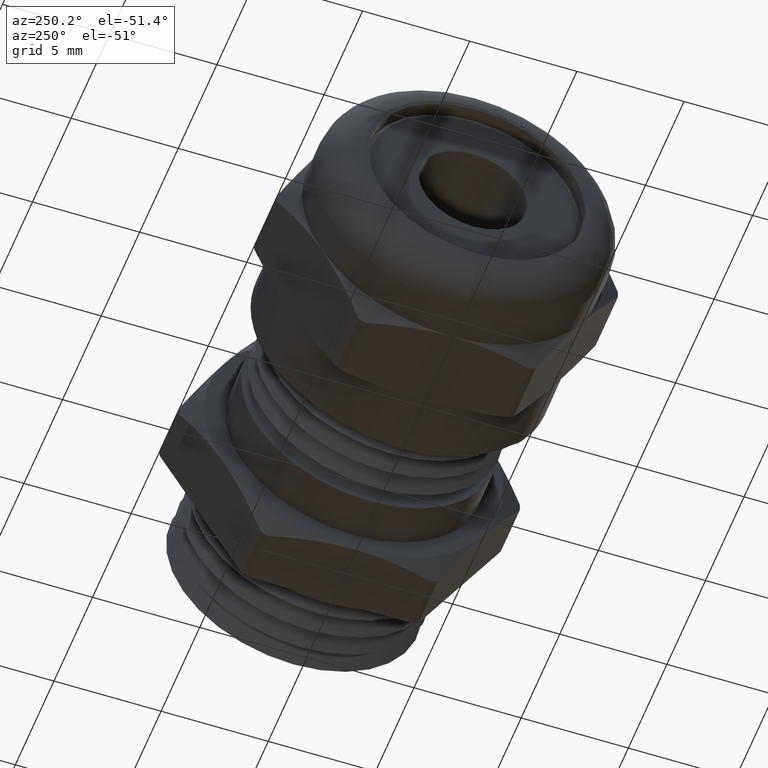
[diagram: clean part render]
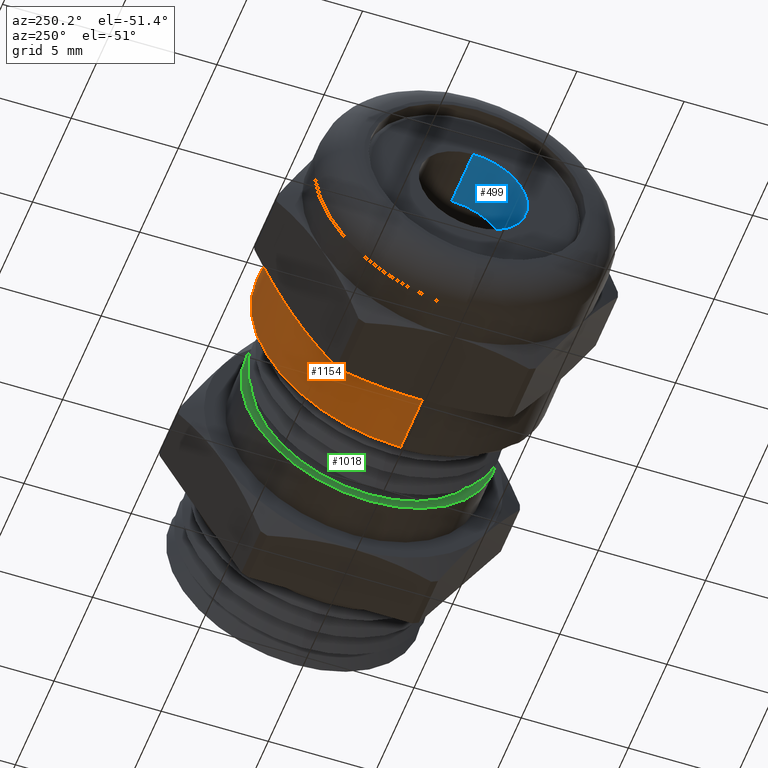
[diagram: same view with three faces highlighted in distinct colors, each labeled with its STEP entity id]
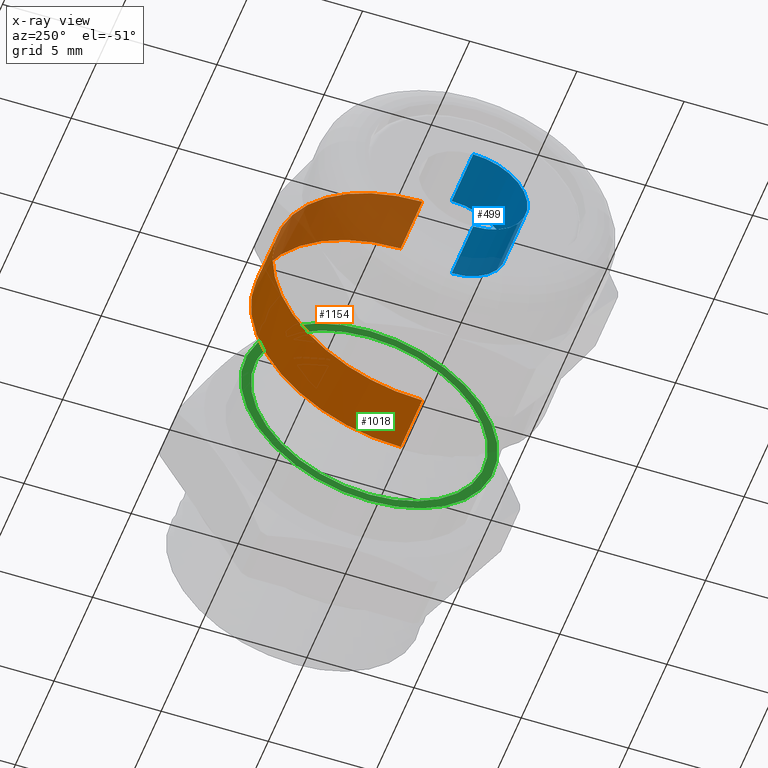
[diagram: x-ray of the same camera — body ghosted, the three highlighted faces saturated]
A machine part, auxiliary view with three faces highlighted in distinct colors.
The next image is the same camera in x-ray (body ghosted, the three faces saturated) — at least one of them is partly hidden behind the body in this view.
Their STEP definitions:

[orange] entity #1154 — the highlighted cylindrical surface (partial cylindrical patch) has radius 6.985 mm, axis along (-1, 0, 0).
#557 = VERTEX_POINT ( 'NONE', #2309 ) ;
#559 = EDGE_CURVE ( 'NONE', #560, #557, #2308, .T. ) ;
#560 = VERTEX_POINT ( 'NONE', #2303 ) ;
#1125 = EDGE_CURVE ( 'NONE', #560, #1190, #3236, .T. ) ;
#1135 = EDGE_CURVE ( 'NONE', #557, #1136, #3267, .T. ) ;
#1136 = VERTEX_POINT ( 'NONE', #3263 ) ;
#1137 = ORIENTED_EDGE ( 'NONE', *, *, #1138, .F. ) ;
#1138 = EDGE_CURVE ( 'NONE', #1139, #1136, #3261, .T. ) ;
#1139 = VERTEX_POINT ( 'NONE', #3262 ) ;
#1154 = ADVANCED_FACE ( 'NONE', ( #3300 ), #3299, .T. ) ;
#1155 = EDGE_LOOP ( 'NONE', ( #1156, #1157, #1137, #1185, #1188, #1207 ) ) ;
#1156 = ORIENTED_EDGE ( 'NONE', *, *, #559, .T. ) ;
#1157 = ORIENTED_EDGE ( 'NONE', *, *, #1135, .T. ) ;
#1185 = ORIENTED_EDGE ( 'NONE', *, *, #1186, .F. ) ;
#1186 = EDGE_CURVE ( 'NONE', #1187, #1139, #3367, .T. ) ;
#1187 = VERTEX_POINT ( 'NONE', #3368 ) ;
#1188 = ORIENTED_EDGE ( 'NONE', *, *, #1189, .F. ) ;
#1189 = EDGE_CURVE ( 'NONE', #1190, #1187, #3362, .T. ) ;
#1190 = VERTEX_POINT ( 'NONE', #3357 ) ;
#1207 = ORIENTED_EDGE ( 'NONE', *, *, #1125, .F. ) ;
#2303 = CARTESIAN_POINT ( 'NONE',  ( -0.08499999999999977000, 0.0000000000000000000, 0.2750000000000000200 ) ) ;
#2304 = DIRECTION ( 'NONE',  ( 0.0000000000000000000, 0.0000000000000000000, 1.000000000000000000 ) ) ;
#2305 = DIRECTION ( 'NONE',  ( -1.000000000000000000, 0.0000000000000000000, 0.0000000000000000000 ) ) ;
#2306 = CARTESIAN_POINT ( 'NONE',  ( -0.08499999999999977000, 0.0000000000000000000, 0.0000000000000000000 ) ) ;
#2307 = AXIS2_PLACEMENT_3D ( 'NONE', #2306, #2305, #2304 ) ;
#2308 = CIRCLE ( 'NONE', #2307, 0.2750000000000000200 ) ;
#2309 = CARTESIAN_POINT ( 'NONE',  ( -0.08499999999999977000, 3.367778697655221900E-017, -0.2750000000000000200 ) ) ;
#3229 = DIRECTION ( 'NONE',  ( -1.000000000000000000, 0.0000000000000000000, 0.0000000000000000000 ) ) ;
#3230 = VECTOR ( 'NONE', #3229, 39.37007874015748100 ) ;
#3231 = CARTESIAN_POINT ( 'NONE',  ( -2.719493435091831800, 0.0000000000000000000, 0.2750000000000000200 ) ) ;
#3236 = LINE ( 'NONE', #3231, #3230 ) ;
#3257 = DIRECTION ( 'NONE',  ( 0.0000000000000000000, 0.0000000000000000000, 1.000000000000000000 ) ) ;
#3258 = DIRECTION ( 'NONE',  ( -1.000000000000000000, 0.0000000000000000000, 0.0000000000000000000 ) ) ;
#3259 = CARTESIAN_POINT ( 'NONE',  ( -0.1949999999999999800, 0.0000000000000000000, 0.0000000000000000000 ) ) ;
#3260 = AXIS2_PLACEMENT_3D ( 'NONE', #3259, #3258, #3257 ) ;
#3261 = CIRCLE ( 'NONE', #3260, 0.2750000000000000200 ) ;
#3262 = CARTESIAN_POINT ( 'NONE',  ( -0.1950000000000000300, 0.2381569860407207200, -0.1375000000000001500 ) ) ;
#3263 = CARTESIAN_POINT ( 'NONE',  ( -0.1950000000000000300, 0.0000000000000000000, -0.2750000000000001300 ) ) ;
#3264 = DIRECTION ( 'NONE',  ( -1.000000000000000000, 0.0000000000000000000, 0.0000000000000000000 ) ) ;
#3265 = VECTOR ( 'NONE', #3264, 39.37007874015748100 ) ;
#3266 = CARTESIAN_POINT ( 'NONE',  ( -2.719493435091831800, 3.367778697655221900E-017, -0.2750000000000000200 ) ) ;
#3267 = LINE ( 'NONE', #3266, #3265 ) ;
#3294 = DIRECTION ( 'NONE',  ( 0.0000000000000000000, 0.0000000000000000000, 1.000000000000000000 ) ) ;
#3295 = DIRECTION ( 'NONE',  ( -1.000000000000000000, 0.0000000000000000000, 0.0000000000000000000 ) ) ;
#3296 = CARTESIAN_POINT ( 'NONE',  ( -2.719493435091831800, 0.0000000000000000000, 0.0000000000000000000 ) ) ;
#3297 = AXIS2_PLACEMENT_3D ( 'NONE', #3296, #3295, #3294 ) ;
#3299 = CYLINDRICAL_SURFACE ( 'NONE', #3297, 0.2750000000000000200 ) ;
#3300 = FACE_OUTER_BOUND ( 'NONE', #1155, .T. ) ;
#3357 = CARTESIAN_POINT ( 'NONE',  ( -0.1950000000000000300, 0.0000000000000000000, 0.2750000000000001300 ) ) ;
#3358 = DIRECTION ( 'NONE',  ( 0.0000000000000000000, 0.0000000000000000000, 1.000000000000000000 ) ) ;
#3359 = DIRECTION ( 'NONE',  ( -1.000000000000000000, 0.0000000000000000000, 0.0000000000000000000 ) ) ;
#3360 = CARTESIAN_POINT ( 'NONE',  ( -0.1949999999999999800, 0.0000000000000000000, 0.0000000000000000000 ) ) ;
#3361 = AXIS2_PLACEMENT_3D ( 'NONE', #3360, #3359, #3358 ) ;
#3362 = CIRCLE ( 'NONE', #3361, 0.2750000000000000200 ) ;
#3363 = DIRECTION ( 'NONE',  ( 0.0000000000000000000, 0.0000000000000000000, 1.000000000000000000 ) ) ;
#3364 = DIRECTION ( 'NONE',  ( -1.000000000000000000, 0.0000000000000000000, 0.0000000000000000000 ) ) ;
#3365 = CARTESIAN_POINT ( 'NONE',  ( -0.1949999999999999800, 0.0000000000000000000, 0.0000000000000000000 ) ) ;
#3366 = AXIS2_PLACEMENT_3D ( 'NONE', #3365, #3364, #3363 ) ;
#3367 = CIRCLE ( 'NONE', #3366, 0.2750000000000000200 ) ;
#3368 = CARTESIAN_POINT ( 'NONE',  ( -0.1950000000000000300, 0.2381569860407207200, 0.1375000000000000900 ) ) ;

[blue] entity #499 — the highlighted cylindrical surface (partial cylindrical patch) has radius 2.54 mm, axis along (1, 0, 0).
#499 = ADVANCED_FACE ( 'NONE', ( #2164 ), #2162, .F. ) ;
#500 = EDGE_LOOP ( 'NONE', ( #501, #505, #509, #511 ) ) ;
#501 = ORIENTED_EDGE ( 'NONE', *, *, #502, .F. ) ;
#502 = EDGE_CURVE ( 'NONE', #503, #504, #2220, .T. ) ;
#503 = VERTEX_POINT ( 'NONE', #2216 ) ;
#504 = VERTEX_POINT ( 'NONE', #2215 ) ;
#505 = ORIENTED_EDGE ( 'NONE', *, *, #506, .T. ) ;
#506 = EDGE_CURVE ( 'NONE', #503, #507, #2214, .T. ) ;
#507 = VERTEX_POINT ( 'NONE', #2210 ) ;
#508 = VERTEX_POINT ( 'NONE', #2209 ) ;
#509 = ORIENTED_EDGE ( 'NONE', *, *, #510, .T. ) ;
#510 = EDGE_CURVE ( 'NONE', #507, #508, #2207, .T. ) ;
#511 = ORIENTED_EDGE ( 'NONE', *, *, #512, .F. ) ;
#512 = EDGE_CURVE ( 'NONE', #504, #508, #2208, .T. ) ;
#2162 = CYLINDRICAL_SURFACE ( 'NONE', #2163, 0.09999999999999999200 ) ;
#2163 = AXIS2_PLACEMENT_3D ( 'NONE', #2170, #2222, #2221 ) ;
#2164 = FACE_OUTER_BOUND ( 'NONE', #500, .T. ) ;
#2170 = CARTESIAN_POINT ( 'NONE',  ( 0.5452584728366800500, 0.0000000000000000000, 0.0000000000000000000 ) ) ;
#2200 = DIRECTION ( 'NONE',  ( 1.000000000000000000, 0.0000000000000000000, 0.0000000000000000000 ) ) ;
#2201 = VECTOR ( 'NONE', #2200, 39.37007874015748100 ) ;
#2202 = CARTESIAN_POINT ( 'NONE',  ( 0.5452584728366800500, 0.0000000000000000000, -0.09999999999999999200 ) ) ;
#2203 = DIRECTION ( 'NONE',  ( 0.0000000000000000000, 0.0000000000000000000, -1.000000000000000000 ) ) ;
#2204 = DIRECTION ( 'NONE',  ( 1.000000000000000000, 0.0000000000000000000, 0.0000000000000000000 ) ) ;
#2205 = CARTESIAN_POINT ( 'NONE',  ( -0.3450000000000000300, 0.0000000000000000000, 0.0000000000000000000 ) ) ;
#2206 = AXIS2_PLACEMENT_3D ( 'NONE', #2205, #2204, #2203 ) ;
#2207 = CIRCLE ( 'NONE', #2206, 0.09999999999999999200 ) ;
#2208 = LINE ( 'NONE', #2202, #2201 ) ;
#2209 = CARTESIAN_POINT ( 'NONE',  ( -0.3450000000000000300, 0.0000000000000000000, -0.09999999999999999200 ) ) ;
#2210 = CARTESIAN_POINT ( 'NONE',  ( -0.3450000000000000300, 1.224646799147353100E-017, 0.09999999999999999200 ) ) ;
#2211 = DIRECTION ( 'NONE',  ( 1.000000000000000000, 0.0000000000000000000, 0.0000000000000000000 ) ) ;
#2212 = VECTOR ( 'NONE', #2211, 39.37007874015748100 ) ;
#2213 = CARTESIAN_POINT ( 'NONE',  ( 0.5452584728366800500, 1.224646799147353100E-017, 0.09999999999999999200 ) ) ;
#2214 = LINE ( 'NONE', #2213, #2212 ) ;
#2215 = CARTESIAN_POINT ( 'NONE',  ( -0.4549999999999999000, 0.0000000000000000000, -0.09999999999999999200 ) ) ;
#2216 = CARTESIAN_POINT ( 'NONE',  ( -0.4549999999999999000, 1.224646799147353100E-017, 0.09999999999999999200 ) ) ;
#2217 = DIRECTION ( 'NONE',  ( 0.0000000000000000000, 0.0000000000000000000, -1.000000000000000000 ) ) ;
#2218 = DIRECTION ( 'NONE',  ( 1.000000000000000000, 0.0000000000000000000, 0.0000000000000000000 ) ) ;
#2219 = AXIS2_PLACEMENT_3D ( 'NONE', #2223, #2218, #2217 ) ;
#2220 = CIRCLE ( 'NONE', #2219, 0.09999999999999999200 ) ;
#2221 = DIRECTION ( 'NONE',  ( 0.0000000000000000000, 0.0000000000000000000, -1.000000000000000000 ) ) ;
#2222 = DIRECTION ( 'NONE',  ( 1.000000000000000000, 0.0000000000000000000, 0.0000000000000000000 ) ) ;
#2223 = CARTESIAN_POINT ( 'NONE',  ( -0.4549999999999999000, 0.0000000000000000000, 0.0000000000000000000 ) ) ;

[green] entity #1018 — the highlighted planar face has unit normal (-1, 0, 0).
#404 = VERTEX_POINT ( 'NONE', #2023 ) ;
#406 = EDGE_CURVE ( 'NONE', #450, #404, #2022, .T. ) ;
#450 = VERTEX_POINT ( 'NONE', #2126 ) ;
#566 = EDGE_CURVE ( 'NONE', #567, #568, #2291, .T. ) ;
#567 = VERTEX_POINT ( 'NONE', #2347 ) ;
#568 = VERTEX_POINT ( 'NONE', #2346 ) ;
#982 = EDGE_CURVE ( 'NONE', #404, #450, #3043, .T. ) ;
#1018 = ADVANCED_FACE ( 'NONE', ( #3118, #3117 ), #3059, .T. ) ;
#1019 = EDGE_LOOP ( 'NONE', ( #1072, #1073 ) ) ;
#1072 = ORIENTED_EDGE ( 'NONE', *, *, #406, .T. ) ;
#1073 = ORIENTED_EDGE ( 'NONE', *, *, #982, .T. ) ;
#1074 = EDGE_LOOP ( 'NONE', ( #1075, #1077 ) ) ;
#1075 = ORIENTED_EDGE ( 'NONE', *, *, #1076, .T. ) ;
#1076 = EDGE_CURVE ( 'NONE', #568, #567, #3167, .T. ) ;
#1077 = ORIENTED_EDGE ( 'NONE', *, *, #566, .T. ) ;
#2018 = DIRECTION ( 'NONE',  ( 0.0000000000000000000, 0.0000000000000000000, 1.000000000000000000 ) ) ;
#2019 = DIRECTION ( 'NONE',  ( 1.000000000000000000, 0.0000000000000000000, 0.0000000000000000000 ) ) ;
#2020 = CARTESIAN_POINT ( 'NONE',  ( 0.07499999999999998300, 0.0000000000000000000, 0.0000000000000000000 ) ) ;
#2021 = AXIS2_PLACEMENT_3D ( 'NONE', #2020, #2019, #2018 ) ;
#2022 = CIRCLE ( 'NONE', #2021, 0.2176794919243113500 ) ;
#2023 = CARTESIAN_POINT ( 'NONE',  ( 0.07499999999999998300, 2.665804930251299900E-017, 0.2176794919243113500 ) ) ;
#2126 = CARTESIAN_POINT ( 'NONE',  ( 0.07499999999999998300, 0.0000000000000000000, -0.2176794919243113500 ) ) ;
#2290 = CARTESIAN_POINT ( 'NONE',  ( 0.07499999999999998300, 0.0000000000000000000, 0.0000000000000000000 ) ) ;
#2291 = CIRCLE ( 'NONE', #2350, 0.2360000000000000200 ) ;
#2346 = CARTESIAN_POINT ( 'NONE',  ( 0.07499999999999998300, 0.0000000000000000000, -0.2360000000000000200 ) ) ;
#2347 = CARTESIAN_POINT ( 'NONE',  ( 0.07499999999999998300, 2.890166445987753900E-017, 0.2360000000000000200 ) ) ;
#2348 = DIRECTION ( 'NONE',  ( 0.0000000000000000000, 0.0000000000000000000, 1.000000000000000000 ) ) ;
#2349 = DIRECTION ( 'NONE',  ( -1.000000000000000000, 0.0000000000000000000, 0.0000000000000000000 ) ) ;
#2350 = AXIS2_PLACEMENT_3D ( 'NONE', #2290, #2349, #2348 ) ;
#3040 = DIRECTION ( 'NONE',  ( 0.0000000000000000000, 0.0000000000000000000, 1.000000000000000000 ) ) ;
#3041 = DIRECTION ( 'NONE',  ( 1.000000000000000000, 0.0000000000000000000, 0.0000000000000000000 ) ) ;
#3042 = AXIS2_PLACEMENT_3D ( 'NONE', #3048, #3041, #3040 ) ;
#3043 = CIRCLE ( 'NONE', #3042, 0.2176794919243113500 ) ;
#3048 = CARTESIAN_POINT ( 'NONE',  ( 0.07499999999999998300, 0.0000000000000000000, 0.0000000000000000000 ) ) ;
#3059 = PLANE ( 'NONE',  #3116 ) ;
#3113 = DIRECTION ( 'NONE',  ( 0.0000000000000000000, 0.0000000000000000000, 1.000000000000000000 ) ) ;
#3114 = DIRECTION ( 'NONE',  ( -1.000000000000000000, 0.0000000000000000000, 0.0000000000000000000 ) ) ;
#3115 = CARTESIAN_POINT ( 'NONE',  ( 0.07499999999999998300, 0.0000000000000000000, 0.0000000000000000000 ) ) ;
#3116 = AXIS2_PLACEMENT_3D ( 'NONE', #3115, #3114, #3113 ) ;
#3117 = FACE_OUTER_BOUND ( 'NONE', #1074, .T. ) ;
#3118 = FACE_BOUND ( 'NONE', #1019, .T. ) ;
#3163 = DIRECTION ( 'NONE',  ( 0.0000000000000000000, 0.0000000000000000000, 1.000000000000000000 ) ) ;
#3164 = DIRECTION ( 'NONE',  ( -1.000000000000000000, 0.0000000000000000000, 0.0000000000000000000 ) ) ;
#3165 = CARTESIAN_POINT ( 'NONE',  ( 0.07499999999999998300, 0.0000000000000000000, 0.0000000000000000000 ) ) ;
#3166 = AXIS2_PLACEMENT_3D ( 'NONE', #3165, #3164, #3163 ) ;
#3167 = CIRCLE ( 'NONE', #3166, 0.2360000000000000200 ) ;